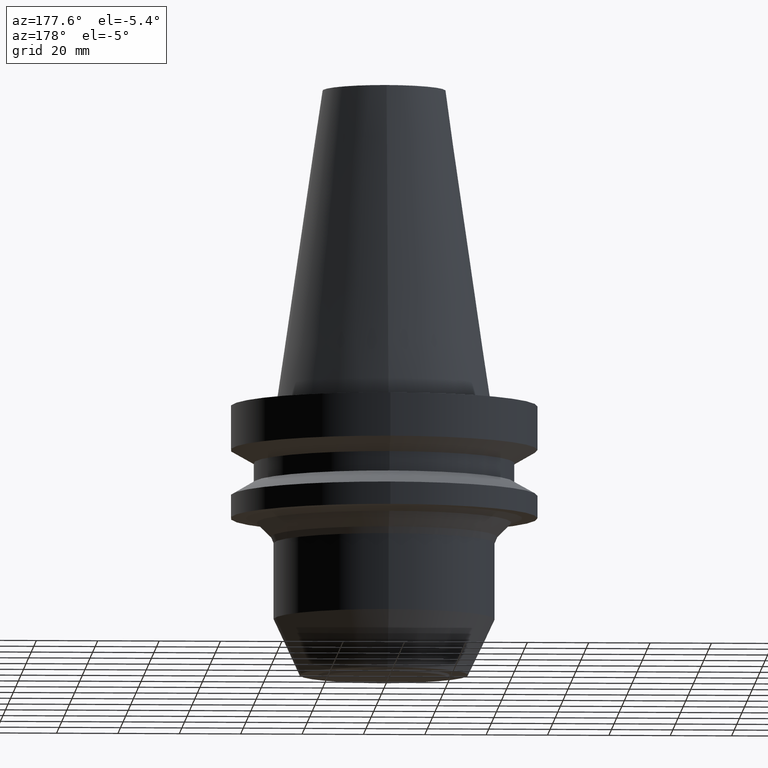
[diagram: clean part render]
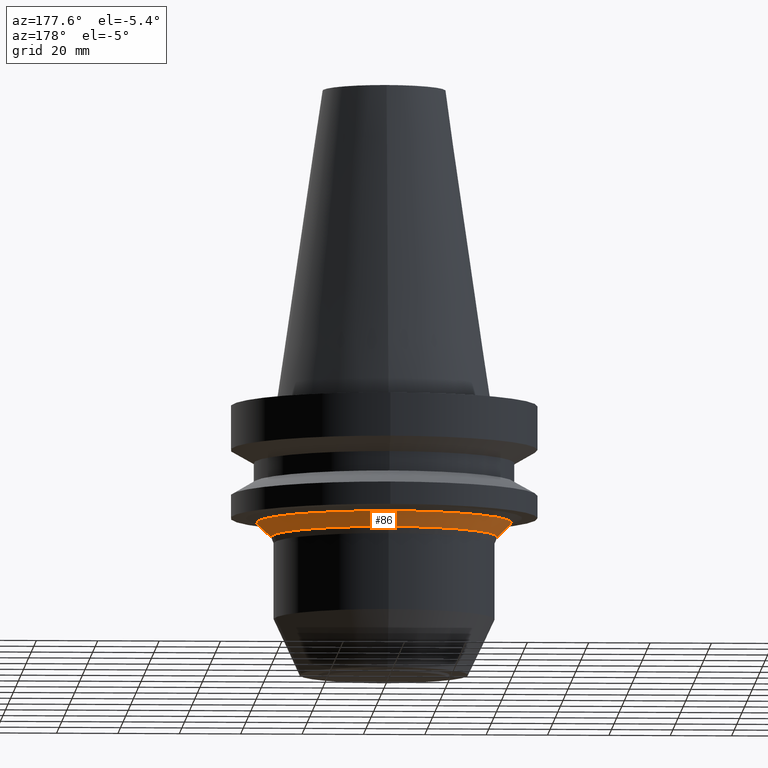
[diagram: same view with one face highlighted and labeled with its STEP entity id]
A machine part, auxiliary view. The second image highlights one B-rep face of the part: STEP entity #86.
In plain terms, the highlighted conical surface has half-angle 45 deg.
Its self-contained STEP definition (entity closure, byte-faithful):
#86=ADVANCED_FACE('',(#126,#127),#128,.T.);
#126=FACE_BOUND('',#178,.T.);
#127=FACE_BOUND('',#179,.T.);
#128=CONICAL_SURFACE('',#180,39.2071067811855,0.785398163397414);
#178=EDGE_LOOP('',(#252));
#179=EDGE_LOOP('',(#253));
#180=AXIS2_PLACEMENT_3D('',#254,#255,#256);
#252=ORIENTED_EDGE('',*,*,#297,.F.);
#253=ORIENTED_EDGE('',*,*,#296,.T.);
#254=CARTESIAN_POINT('',(2.55907664537646E-015,5.11815329075292E-015,-41.7928932188152));
#255=DIRECTION('',(-6.12323399573677E-017,-1.22464679914754E-016,1.0));
#256=DIRECTION('',(-1.23259516440804E-032,1.0,1.22464679914754E-016));
#296=EDGE_CURVE('',#323,#323,#324,.T.);
#297=EDGE_CURVE('',#325,#325,#326,.T.);
#323=VERTEX_POINT('',#357);
#324=CIRCLE('',#358,41.535533905933);
#325=VERTEX_POINT('',#359);
#326=CIRCLE('',#360,36.8786796564379);
#357=CARTESIAN_POINT('',(2.41650160410795E-015,41.535533905933,-39.4644660940675));
#358=AXIS2_PLACEMENT_3D('',#401,#402,#403);
#359=CARTESIAN_POINT('',(2.70165168664497E-015,36.8786796564379,-44.1213203435629));
#360=AXIS2_PLACEMENT_3D('',#404,#405,#406);
#401=CARTESIAN_POINT('',(2.41650160410795E-015,4.8330032082159E-015,-39.4644660940675));
#402=DIRECTION('',(6.12323399573677E-017,1.22464679914713E-016,-1.0));
#403=DIRECTION('',(-1.23259516440779E-032,1.0,1.22464679914713E-016));
#404=CARTESIAN_POINT('',(2.70165168664497E-015,5.40330337328993E-015,-44.1213203435629));
#405=DIRECTION('',(6.12323399573677E-017,1.22464679914714E-016,-1.0));
#406=DIRECTION('',(-1.23259516440784E-032,1.0,1.22464679914714E-016));